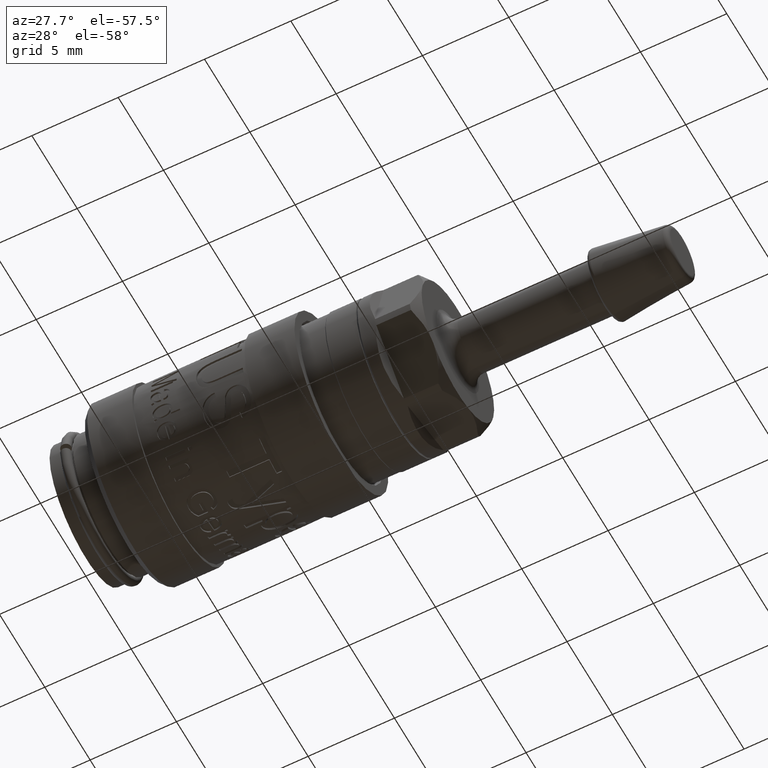
[diagram: clean part render]
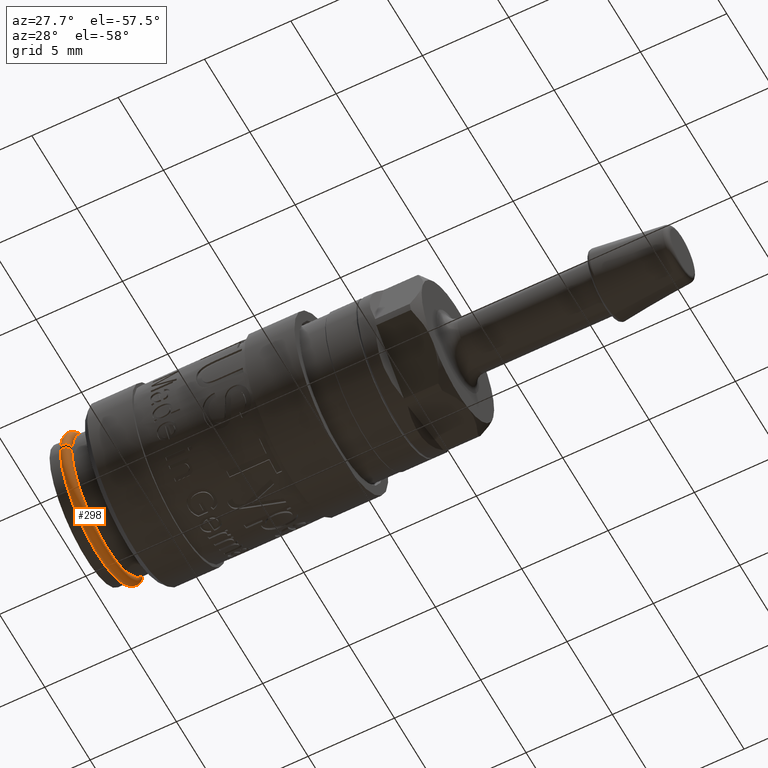
[diagram: same view with one face highlighted and labeled with its STEP entity id]
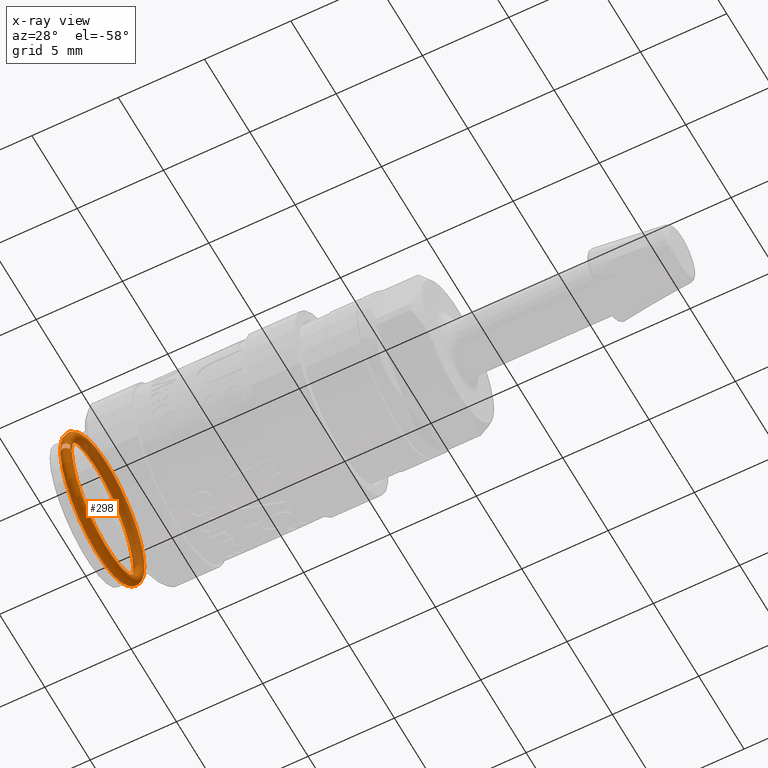
[diagram: x-ray of the same camera — body ghosted, the highlighted face saturated]
A machine part, auxiliary view. The second image highlights one B-rep face of the part: STEP entity #298.
The next image is the same camera in x-ray: the body ghosted, the highlighted face saturated — about 41% of this face is hidden behind the body in this view.
In plain terms, the highlighted toroidal blend (fillet) surface has major radius 4 mm and minor (blend) radius 0.3 mm.
Its self-contained STEP definition (entity closure, byte-faithful):
#209=CARTESIAN_POINT('',(0.950000000002509,-1.836971E-017,1.836978E-017));
#210=DIRECTION('',(-1.0,6.123236E-017,-6.123259E-017));
#211=DIRECTION('',(-6.123259E-017,-3.348515E-010,1.0));
#212=AXIS2_PLACEMENT_3D('',#209,#210,#211);
#213=TOROIDAL_SURFACE('',#212,4.0,0.3);
#214=CARTESIAN_POINT('',(0.950000000002508,-3.694590640315263,-0.20000000123714));
#215=VERTEX_POINT('',#214);
#216=CARTESIAN_POINT('',(0.950000000002508,-3.694590640449204,0.199999998762861));
#217=VERTEX_POINT('',#216);
#218=CARTESIAN_POINT('',(0.950000000002509,-1.836971E-017,1.836978E-017));
#219=DIRECTION('',(1.0,0.0,0.0));
#220=DIRECTION('',(0.0,1.0,0.0));
#221=AXIS2_PLACEMENT_3D('',#218,#219,#220);
#222=CIRCLE('',#221,3.700000000000001);
#223=EDGE_CURVE('',#215,#217,#222,.T.);
#224=ORIENTED_EDGE('',*,*,#223,.F.);
#225=CARTESIAN_POINT('',(0.650000000002508,-3.994996871020666,-0.200000001337731));
#226=VERTEX_POINT('',#225);
#227=CARTESIAN_POINT('',(0.950000000002508,-3.694590640315263,-0.20000000123714));
#228=CARTESIAN_POINT('',(0.987007550890348,-3.694590640315263,-0.20000000123714));
#229=CARTESIAN_POINT('',(1.030561466167074,-3.703263654138549,-0.200000001240044));
#230=CARTESIAN_POINT('',(1.098959359207599,-3.731619358376432,-0.200000001249539));
#231=CARTESIAN_POINT('',(1.13589919884846,-3.756328726222542,-0.200000001257813));
#232=CARTESIAN_POINT('',(1.188273754311871,-3.808748580178476,-0.200000001275365));
#233=CARTESIAN_POINT('',(1.212967316853705,-3.845743138400617,-0.200000001287753));
#234=CARTESIAN_POINT('',(1.241325127449251,-3.914259221388257,-0.200000001310696));
#235=CARTESIAN_POINT('',(1.250000000002509,-3.957909917345575,-0.200000001325312));
#236=CARTESIAN_POINT('',(1.250000000002509,-4.032080492512676,-0.200000001350149));
#237=CARTESIAN_POINT('',(1.241326341310451,-4.075727352884986,-0.200000001364764));
#238=CARTESIAN_POINT('',(1.21296990740486,-4.144232016887691,-0.200000001387703));
#239=CARTESIAN_POINT('',(1.188278687609425,-4.18121696414433,-0.200000001400087));
#240=CARTESIAN_POINT('',(1.135907327164147,-4.23362349599625,-0.200000001417635));
#241=CARTESIAN_POINT('',(1.098968292949116,-4.258325570237378,-0.200000001425907));
#242=CARTESIAN_POINT('',(1.030568802215264,-4.286675290665023,-0.2000000014354));
#243=CARTESIAN_POINT('',(0.987010672344446,-4.295346318915936,-0.200000001438304));
#244=CARTESIAN_POINT('',(0.950000000002508,-4.295346318915936,-0.200000001438304));
#245=CARTESIAN_POINT('',(0.912989327660571,-4.295346318915936,-0.200000001438304));
#246=CARTESIAN_POINT('',(0.869431197789753,-4.286675290665023,-0.2000000014354));
#247=CARTESIAN_POINT('',(0.801031707055901,-4.258325570237378,-0.200000001425907));
#248=CARTESIAN_POINT('',(0.76409267284087,-4.23362349599625,-0.200000001417636));
#249=CARTESIAN_POINT('',(0.711721312395592,-4.18121696414433,-0.200000001400087));
#250=CARTESIAN_POINT('',(0.687030092600157,-4.144232016887691,-0.200000001387703));
#251=CARTESIAN_POINT('',(0.658673658694566,-4.075727352884986,-0.200000001364764));
#252=CARTESIAN_POINT('',(0.650000000002508,-4.032080492512676,-0.200000001350149));
#253=CARTESIAN_POINT('',(0.650000000002508,-3.994996871020666,-0.200000001337731));
#254=B_SPLINE_CURVE_WITH_KNOTS('',3,(#227,#228,#229,#230,#231,#232,#233,#234,#235,#236,#237,#238,#239,#240,#241,#242,#243,#244,#245,#246,#247,#248,#249,#250,#251,#252,#253),.UNSPECIFIED.,.F.,.U.,(4,2,2,2,2,2,2,2,3,2,2,2,4),(0.088913641555944,0.100015906822296,0.111126444084414,0.122246160158405,0.133372246260933,0.144497332708536,0.155614725215782,0.166724081409306,0.177827283111887,0.188930484814468,0.200039841007992,0.211157233515239,0.222282319962842),.UNSPECIFIED.);
#255=EDGE_CURVE('',#215,#226,#254,.T.);
#256=ORIENTED_EDGE('',*,*,#255,.T.);
#257=CARTESIAN_POINT('',(0.650000000002508,-3.994996871154606,0.199999998662269));
#258=VERTEX_POINT('',#257);
#259=CARTESIAN_POINT('',(0.649999999999999,0.0,0.0));
#260=DIRECTION('',(1.0,0.0,0.0));
#261=DIRECTION('',(0.0,1.0,0.0));
#262=AXIS2_PLACEMENT_3D('',#259,#260,#261);
#263=CIRCLE('',#262,4.0);
#264=EDGE_CURVE('',#226,#258,#263,.T.);
#265=ORIENTED_EDGE('',*,*,#264,.T.);
#266=CARTESIAN_POINT('',(0.650000000002508,-3.994996871154607,0.199999998662269));
#267=CARTESIAN_POINT('',(0.650000000002508,-4.032080492646617,0.199999998649852));
#268=CARTESIAN_POINT('',(0.658673658694566,-4.075727353018927,0.199999998635236));
#269=CARTESIAN_POINT('',(0.687030092600157,-4.144232017021632,0.199999998612298));
#270=CARTESIAN_POINT('',(0.711721312395592,-4.181216964278271,0.199999998599913));
#271=CARTESIAN_POINT('',(0.76409267284087,-4.233623496130191,0.199999998582365));
#272=CARTESIAN_POINT('',(0.801031707055901,-4.258325570371319,0.199999998574093));
#273=CARTESIAN_POINT('',(0.869431197789753,-4.286675290798963,0.1999999985646));
#274=CARTESIAN_POINT('',(0.912989327660571,-4.295346319049877,0.199999998561697));
#275=CARTESIAN_POINT('',(0.950000000002508,-4.295346319049877,0.199999998561697));
#276=CARTESIAN_POINT('',(0.987010672344446,-4.295346319049877,0.199999998561697));
#277=CARTESIAN_POINT('',(1.030568802215264,-4.286675290798963,0.1999999985646));
#278=CARTESIAN_POINT('',(1.098968292949116,-4.258325570371319,0.199999998574093));
#279=CARTESIAN_POINT('',(1.135907327164147,-4.233623496130191,0.199999998582365));
#280=CARTESIAN_POINT('',(1.188278687609425,-4.181216964278271,0.199999998599913));
#281=CARTESIAN_POINT('',(1.21296990740486,-4.144232017021632,0.199999998612298));
#282=CARTESIAN_POINT('',(1.241326341310451,-4.075727353018927,0.199999998635236));
#283=CARTESIAN_POINT('',(1.250000000002509,-4.032080492646617,0.199999998649852));
#284=CARTESIAN_POINT('',(1.250000000002509,-3.957909917479516,0.199999998674688));
#285=CARTESIAN_POINT('',(1.241325127449251,-3.914259221522198,0.199999998689304));
#286=CARTESIAN_POINT('',(1.212967316853705,-3.845743138534558,0.199999998712247));
#287=CARTESIAN_POINT('',(1.188273754311871,-3.808748580312416,0.199999998724635));
#288=CARTESIAN_POINT('',(1.13589919884846,-3.756328726356482,0.199999998742188));
#289=CARTESIAN_POINT('',(1.098959359207599,-3.731619358510373,0.199999998750462));
#290=CARTESIAN_POINT('',(1.030561466167074,-3.70326365427249,0.199999998759957));
#291=CARTESIAN_POINT('',(0.987007550890348,-3.694590640449204,0.199999998762861));
#292=CARTESIAN_POINT('',(0.950000000002508,-3.694590640449204,0.199999998762861));
#293=B_SPLINE_CURVE_WITH_KNOTS('',3,(#266,#267,#268,#269,#270,#271,#272,#273,#274,#275,#276,#277,#278,#279,#280,#281,#282,#283,#284,#285,#286,#287,#288,#289,#290,#291,#292),.UNSPECIFIED.,.F.,.U.,(4,2,2,2,3,2,2,2,2,2,2,2,4),(0.133372246260933,0.144497332708536,0.155614725215782,0.166724081409306,0.177827283111887,0.188930484814468,0.200039841007992,0.211157233515239,0.222282319962842,0.233408406065369,0.24452812213936,0.255638659401479,0.266740924667831),.UNSPECIFIED.);
#294=EDGE_CURVE('',#258,#217,#293,.T.);
#295=ORIENTED_EDGE('',*,*,#294,.T.);
#296=EDGE_LOOP('',(#224,#256,#265,#295));
#297=FACE_OUTER_BOUND('',#296,.T.);
#298=ADVANCED_FACE('',(#297),#213,.T.);